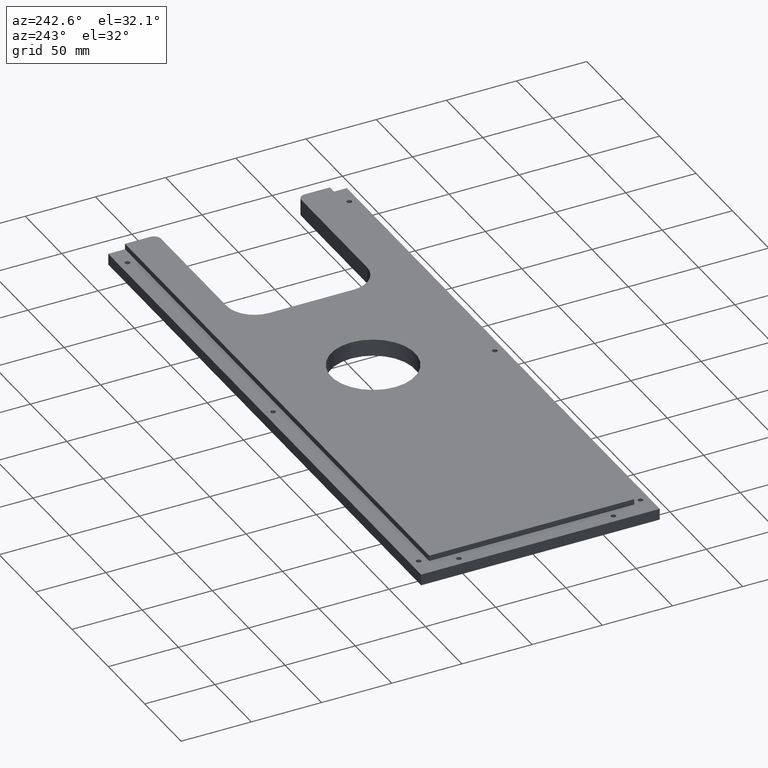
[diagram: clean part render]
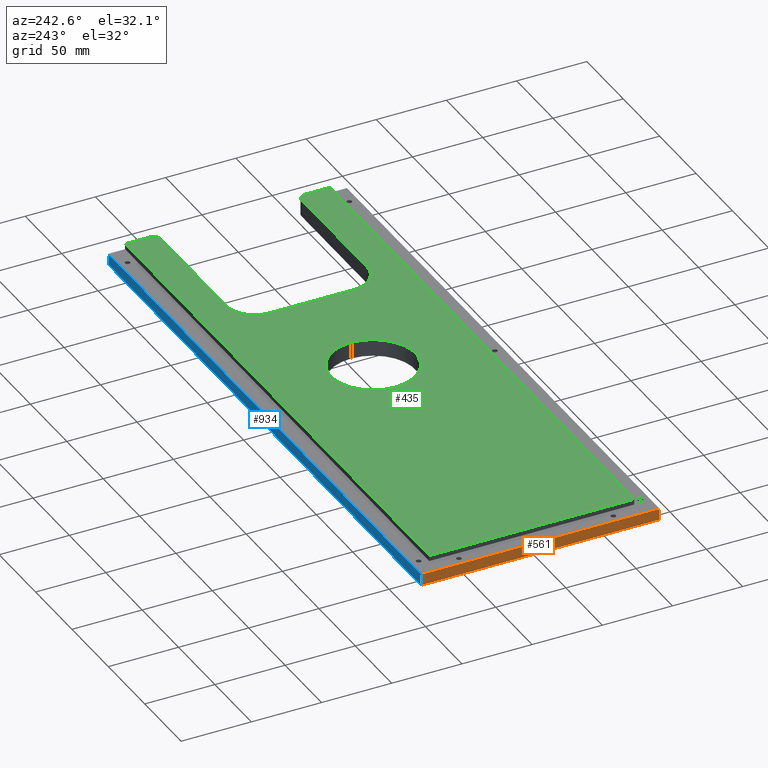
[diagram: same view with three faces highlighted in distinct colors, each labeled with its STEP entity id]
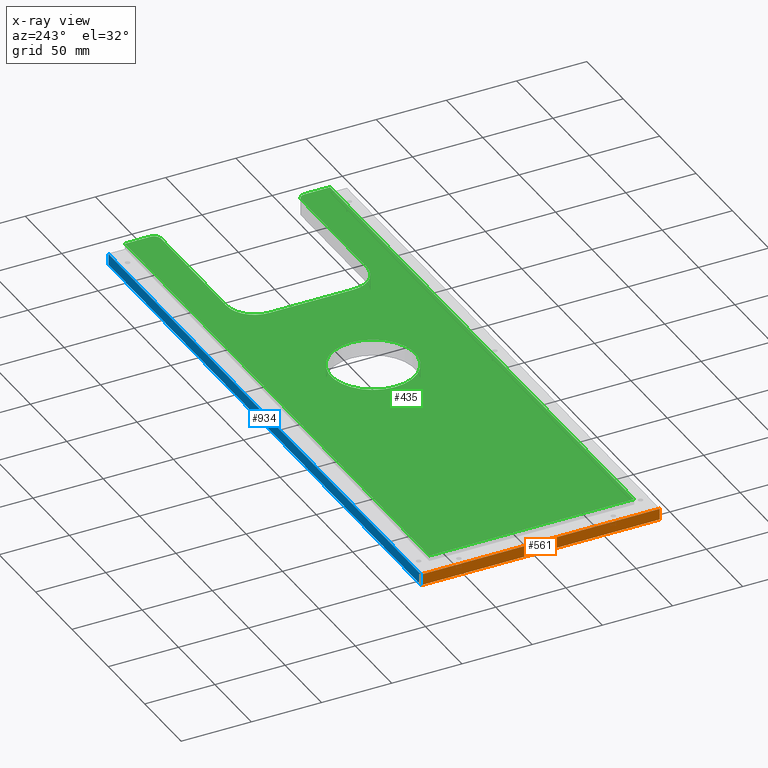
[diagram: x-ray of the same camera — body ghosted, the three highlighted faces saturated]
A machine part, auxiliary view with three faces highlighted in distinct colors.
The next image is the same camera in x-ray (body ghosted, the three faces saturated) — at least one of them is partly hidden behind the body in this view.
Their STEP definitions:

[orange] entity #561 — the highlighted planar face has unit normal (1, 0, -0).
#11 = EDGE_CURVE ( 'NONE', #146, #1220, #1095, .T. ) ;
#25 = AXIS2_PLACEMENT_3D ( 'NONE', #574, #439, #431 ) ;
#73 = VECTOR ( 'NONE', #549, 1000.000000000000000 ) ;
#76 = CARTESIAN_POINT ( 'NONE',  ( -215.0000000000000300, 85.00000000000001400, 2.000000000000000000 ) ) ;
#146 = VERTEX_POINT ( 'NONE', #917 ) ;
#218 = VECTOR ( 'NONE', #340, 1000.000000000000000 ) ;
#283 = ORIENTED_EDGE ( 'NONE', *, *, #391, .F. ) ;
#317 = VERTEX_POINT ( 'NONE', #868 ) ;
#340 = DIRECTION ( 'NONE',  ( 0.0000000000000000000, -1.000000000000000000, 0.0000000000000000000 ) ) ;
#391 = EDGE_CURVE ( 'NONE', #633, #146, #1143, .T. ) ;
#400 = CARTESIAN_POINT ( 'NONE',  ( -215.0000000000000300, 85.00000000000001400, 2.000000000000000000 ) ) ;
#431 = DIRECTION ( 'NONE',  ( -1.632680918566406500E-016, 1.000000000000000000, 0.0000000000000000000 ) ) ;
#439 = DIRECTION ( 'NONE',  ( 1.000000000000000000, 1.632680918566406500E-016, -0.0000000000000000000 ) ) ;
#480 = PLANE ( 'NONE',  #25 ) ;
#523 = ORIENTED_EDGE ( 'NONE', *, *, #11, .F. ) ;
#549 = DIRECTION ( 'NONE',  ( -0.0000000000000000000, -0.0000000000000000000, -1.000000000000000000 ) ) ;
#561 = ADVANCED_FACE ( 'NONE', ( #1025 ), #480, .F. ) ;
#574 = CARTESIAN_POINT ( 'NONE',  ( -215.0000000000000300, 85.00000000000001400, 6.000000000000000000 ) ) ;
#633 = VERTEX_POINT ( 'NONE', #76 ) ;
#651 = VECTOR ( 'NONE', #1191, 1000.000000000000000 ) ;
#668 = EDGE_CURVE ( 'NONE', #317, #1220, #881, .T. ) ;
#746 = CARTESIAN_POINT ( 'NONE',  ( -215.0000000000000000, -84.99999999999998600, -6.000000000000000000 ) ) ;
#791 = ORIENTED_EDGE ( 'NONE', *, *, #1120, .T. ) ;
#829 = ORIENTED_EDGE ( 'NONE', *, *, #668, .T. ) ;
#856 = VECTOR ( 'NONE', #913, 1000.000000000000000 ) ;
#868 = CARTESIAN_POINT ( 'NONE',  ( -215.0000000000000300, 85.00000000000001400, -6.000000000000000000 ) ) ;
#881 = LINE ( 'NONE', #1196, #651 ) ;
#913 = DIRECTION ( 'NONE',  ( -0.0000000000000000000, -0.0000000000000000000, -1.000000000000000000 ) ) ;
#917 = CARTESIAN_POINT ( 'NONE',  ( -215.0000000000000000, -84.99999999999998600, 2.000000000000000000 ) ) ;
#965 = EDGE_LOOP ( 'NONE', ( #523, #283, #791, #829 ) ) ;
#1025 = FACE_OUTER_BOUND ( 'NONE', #965, .T. ) ;
#1095 = LINE ( 'NONE', #1246, #73 ) ;
#1120 = EDGE_CURVE ( 'NONE', #633, #317, #1209, .T. ) ;
#1143 = LINE ( 'NONE', #400, #218 ) ;
#1191 = DIRECTION ( 'NONE',  ( 1.632680918566406500E-016, -1.000000000000000000, 0.0000000000000000000 ) ) ;
#1196 = CARTESIAN_POINT ( 'NONE',  ( -215.0000000000000300, 85.00000000000001400, -6.000000000000000000 ) ) ;
#1209 = LINE ( 'NONE', #1249, #856 ) ;
#1220 = VERTEX_POINT ( 'NONE', #746 ) ;
#1246 = CARTESIAN_POINT ( 'NONE',  ( -215.0000000000000000, -84.99999999999998600, 6.000000000000000000 ) ) ;
#1249 = CARTESIAN_POINT ( 'NONE',  ( -215.0000000000000300, 85.00000000000001400, 6.000000000000000000 ) ) ;

[blue] entity #934 — the highlighted planar face has unit normal (0, -1, 0).
#18 = CARTESIAN_POINT ( 'NONE',  ( 214.9999999999999700, 85.00000000000001400, -6.000000000000000000 ) ) ;
#68 = CARTESIAN_POINT ( 'NONE',  ( 214.9999999999999700, 85.00000000000001400, 6.000000000000000000 ) ) ;
#76 = CARTESIAN_POINT ( 'NONE',  ( -215.0000000000000300, 85.00000000000001400, 2.000000000000000000 ) ) ;
#167 = EDGE_CURVE ( 'NONE', #967, #317, #1024, .T. ) ;
#215 = ORIENTED_EDGE ( 'NONE', *, *, #440, .T. ) ;
#267 = EDGE_LOOP ( 'NONE', ( #612, #215, #546, #1099 ) ) ;
#270 = VECTOR ( 'NONE', #1164, 1000.000000000000000 ) ;
#317 = VERTEX_POINT ( 'NONE', #868 ) ;
#333 = LINE ( 'NONE', #68, #1111 ) ;
#381 = VECTOR ( 'NONE', #692, 1000.000000000000000 ) ;
#440 = EDGE_CURVE ( 'NONE', #552, #967, #333, .T. ) ;
#487 = DIRECTION ( 'NONE',  ( 0.0000000000000000000, -0.0000000000000000000, -1.000000000000000000 ) ) ;
#488 = DIRECTION ( 'NONE',  ( 0.0000000000000000000, -1.000000000000000000, 0.0000000000000000000 ) ) ;
#546 = ORIENTED_EDGE ( 'NONE', *, *, #167, .T. ) ;
#552 = VERTEX_POINT ( 'NONE', #599 ) ;
#591 = PLANE ( 'NONE',  #825 ) ;
#599 = CARTESIAN_POINT ( 'NONE',  ( 214.9999999999999700, 85.00000000000001400, 2.000000000000000000 ) ) ;
#612 = ORIENTED_EDGE ( 'NONE', *, *, #910, .F. ) ;
#613 = CARTESIAN_POINT ( 'NONE',  ( -215.0000000000000300, 85.00000000000001400, 6.000000000000000000 ) ) ;
#633 = VERTEX_POINT ( 'NONE', #76 ) ;
#654 = DIRECTION ( 'NONE',  ( -0.0000000000000000000, -0.0000000000000000000, -1.000000000000000000 ) ) ;
#692 = DIRECTION ( 'NONE',  ( -1.000000000000000000, -0.0000000000000000000, -0.0000000000000000000 ) ) ;
#701 = CARTESIAN_POINT ( 'NONE',  ( -215.0000000000000300, 85.00000000000001400, 2.000000000000000000 ) ) ;
#825 = AXIS2_PLACEMENT_3D ( 'NONE', #613, #488, #487 ) ;
#856 = VECTOR ( 'NONE', #913, 1000.000000000000000 ) ;
#868 = CARTESIAN_POINT ( 'NONE',  ( -215.0000000000000300, 85.00000000000001400, -6.000000000000000000 ) ) ;
#890 = FACE_OUTER_BOUND ( 'NONE', #267, .T. ) ;
#910 = EDGE_CURVE ( 'NONE', #552, #633, #1113, .T. ) ;
#913 = DIRECTION ( 'NONE',  ( -0.0000000000000000000, -0.0000000000000000000, -1.000000000000000000 ) ) ;
#934 = ADVANCED_FACE ( 'NONE', ( #890 ), #591, .F. ) ;
#951 = CARTESIAN_POINT ( 'NONE',  ( -215.0000000000000300, 85.00000000000001400, -6.000000000000000000 ) ) ;
#967 = VERTEX_POINT ( 'NONE', #18 ) ;
#1024 = LINE ( 'NONE', #951, #270 ) ;
#1099 = ORIENTED_EDGE ( 'NONE', *, *, #1120, .F. ) ;
#1111 = VECTOR ( 'NONE', #654, 1000.000000000000000 ) ;
#1113 = LINE ( 'NONE', #701, #381 ) ;
#1120 = EDGE_CURVE ( 'NONE', #633, #317, #1209, .T. ) ;
#1164 = DIRECTION ( 'NONE',  ( -1.000000000000000000, -0.0000000000000000000, -0.0000000000000000000 ) ) ;
#1209 = LINE ( 'NONE', #1249, #856 ) ;
#1249 = CARTESIAN_POINT ( 'NONE',  ( -215.0000000000000300, 85.00000000000001400, 6.000000000000000000 ) ) ;

[green] entity #435 — the highlighted planar face has unit normal (-0, 0, 1).
#1 = CARTESIAN_POINT ( 'NONE',  ( -203.0000000000000000, 73.00000000000002800, 6.000000000000000000 ) ) ;
#6 = CIRCLE ( 'NONE', #356, 19.99999999999998900 ) ;
#12 = DIRECTION ( 'NONE',  ( -1.901066822988281500E-016, 1.000000000000000000, -0.0000000000000000000 ) ) ;
#17 = CIRCLE ( 'NONE', #1272, 5.000000000000004400 ) ;
#39 = DIRECTION ( 'NONE',  ( -1.000000000000000000, -0.0000000000000000000, -0.0000000000000000000 ) ) ;
#56 = EDGE_CURVE ( 'NONE', #237, #1211, #6, .T. ) ;
#93 = VERTEX_POINT ( 'NONE', #639 ) ;
#103 = DIRECTION ( 'NONE',  ( 1.000000000000000000, 0.0000000000000000000, 0.0000000000000000000 ) ) ;
#107 = VERTEX_POINT ( 'NONE', #198 ) ;
#112 = DIRECTION ( 'NONE',  ( 0.0000000000000000000, 0.0000000000000000000, 1.000000000000000000 ) ) ;
#115 = CARTESIAN_POINT ( 'NONE',  ( 15.00000000000006900, 1.224646799147347500E-016, 6.000000000000000000 ) ) ;
#117 = EDGE_CURVE ( 'NONE', #1062, #107, #433, .T. ) ;
#132 = ORIENTED_EDGE ( 'NONE', *, *, #316, .T. ) ;
#151 = EDGE_CURVE ( 'NONE', #1211, #1052, #454, .T. ) ;
#155 = VECTOR ( 'NONE', #168, 1000.000000000000000 ) ;
#168 = DIRECTION ( 'NONE',  ( 1.000000000000000000, -1.460819769243627100E-016, -0.0000000000000000000 ) ) ;
#175 = DIRECTION ( 'NONE',  ( 0.0000000000000000000, 0.0000000000000000000, 1.000000000000000000 ) ) ;
#187 = CARTESIAN_POINT ( 'NONE',  ( -215.0000000000000300, -73.00000000000000000, 6.000000000000000000 ) ) ;
#190 = EDGE_CURVE ( 'NONE', #970, #496, #197, .T. ) ;
#192 = CARTESIAN_POINT ( 'NONE',  ( 214.9999999999999700, -50.00000000000000000, 6.000000000000000000 ) ) ;
#197 = CIRCLE ( 'NONE', #1212, 30.00000000000000000 ) ;
#198 = CARTESIAN_POINT ( 'NONE',  ( 209.9999999999999400, -50.00000000000000000, 6.000000000000000000 ) ) ;
#211 = ORIENTED_EDGE ( 'NONE', *, *, #1072, .F. ) ;
#213 = DIRECTION ( 'NONE',  ( 1.000000000000000000, 0.0000000000000000000, 0.0000000000000000000 ) ) ;
#237 = VERTEX_POINT ( 'NONE', #276 ) ;
#245 = EDGE_LOOP ( 'NONE', ( #349, #734, #652, #1122, #831, #475, #132, #1221, #540, #211, #1081, #610 ) ) ;
#251 = CIRCLE ( 'NONE', #1194, 19.99999999999998900 ) ;
#257 = LINE ( 'NONE', #1, #1065 ) ;
#273 = ORIENTED_EDGE ( 'NONE', *, *, #190, .F. ) ;
#276 = CARTESIAN_POINT ( 'NONE',  ( 119.9999999999999700, 49.99999999999998600, 6.000000000000000000 ) ) ;
#316 = EDGE_CURVE ( 'NONE', #93, #1131, #962, .T. ) ;
#343 = VERTEX_POINT ( 'NONE', #551 ) ;
#349 = ORIENTED_EDGE ( 'NONE', *, *, #775, .F. ) ;
#356 = AXIS2_PLACEMENT_3D ( 'NONE', #630, #175, #436 ) ;
#360 = DIRECTION ( 'NONE',  ( -1.000000000000000000, -1.460819769243627100E-016, 0.0000000000000000000 ) ) ;
#368 = CARTESIAN_POINT ( 'NONE',  ( 214.9999999999999700, 50.00000000000000000, 6.000000000000000000 ) ) ;
#433 = LINE ( 'NONE', #192, #155 ) ;
#434 = VECTOR ( 'NONE', #1133, 1000.000000000000000 ) ;
#435 = ADVANCED_FACE ( 'NONE', ( #565, #1086 ), #778, .T. ) ;
#436 = DIRECTION ( 'NONE',  ( 1.000000000000000000, 0.0000000000000000000, 0.0000000000000000000 ) ) ;
#454 = LINE ( 'NONE', #1003, #1224 ) ;
#458 = DIRECTION ( 'NONE',  ( -1.000000000000000000, 0.0000000000000000000, 0.0000000000000000000 ) ) ;
#465 = DIRECTION ( 'NONE',  ( 0.0000000000000000000, 0.0000000000000000000, 1.000000000000000000 ) ) ;
#468 = CARTESIAN_POINT ( 'NONE',  ( 209.9999999999999700, 55.00000000000000000, 6.000000000000000000 ) ) ;
#475 = ORIENTED_EDGE ( 'NONE', *, *, #1142, .F. ) ;
#494 = VECTOR ( 'NONE', #873, 1000.000000000000000 ) ;
#495 = EDGE_CURVE ( 'NONE', #1015, #696, #943, .T. ) ;
#496 = VERTEX_POINT ( 'NONE', #1022 ) ;
#537 = DIRECTION ( 'NONE',  ( 0.0000000000000000000, 0.0000000000000000000, 1.000000000000000000 ) ) ;
#540 = ORIENTED_EDGE ( 'NONE', *, *, #117, .F. ) ;
#551 = CARTESIAN_POINT ( 'NONE',  ( 209.9999999999999700, 50.00000000000000000, 6.000000000000000000 ) ) ;
#559 = CARTESIAN_POINT ( 'NONE',  ( 119.9999999999999700, -29.99999999999999300, 6.000000000000000000 ) ) ;
#565 = FACE_OUTER_BOUND ( 'NONE', #245, .T. ) ;
#610 = ORIENTED_EDGE ( 'NONE', *, *, #56, .F. ) ;
#611 = EDGE_CURVE ( 'NONE', #496, #970, #826, .T. ) ;
#630 = CARTESIAN_POINT ( 'NONE',  ( 119.9999999999999700, 29.99999999999999300, 6.000000000000000000 ) ) ;
#639 = CARTESIAN_POINT ( 'NONE',  ( 214.9999999999999400, -73.00000000000001400, 6.000000000000000000 ) ) ;
#652 = ORIENTED_EDGE ( 'NONE', *, *, #495, .T. ) ;
#696 = VERTEX_POINT ( 'NONE', #1140 ) ;
#711 = EDGE_LOOP ( 'NONE', ( #273, #974 ) ) ;
#734 = ORIENTED_EDGE ( 'NONE', *, *, #1264, .T. ) ;
#747 = VECTOR ( 'NONE', #360, 1000.000000000000000 ) ;
#753 = CARTESIAN_POINT ( 'NONE',  ( 99.99999999999997200, 29.99999999999999600, 6.000000000000000000 ) ) ;
#754 = EDGE_CURVE ( 'NONE', #1034, #696, #1192, .T. ) ;
#770 = VERTEX_POINT ( 'NONE', #813 ) ;
#775 = EDGE_CURVE ( 'NONE', #343, #237, #1010, .T. ) ;
#776 = CARTESIAN_POINT ( 'NONE',  ( 119.9999999999999700, -49.99999999999998600, 6.000000000000000000 ) ) ;
#778 = PLANE ( 'NONE',  #1068 ) ;
#782 = DIRECTION ( 'NONE',  ( -0.0000000000000000000, 0.0000000000000000000, 1.000000000000000000 ) ) ;
#795 = DIRECTION ( 'NONE',  ( 1.000000000000000000, 0.0000000000000000000, 0.0000000000000000000 ) ) ;
#798 = DIRECTION ( 'NONE',  ( 1.000000000000000000, 0.0000000000000000000, 0.0000000000000000000 ) ) ;
#804 = DIRECTION ( 'NONE',  ( 1.000000000000000000, 0.0000000000000000000, 0.0000000000000000000 ) ) ;
#813 = CARTESIAN_POINT ( 'NONE',  ( -203.0000000000000000, -73.00000000000001400, 6.000000000000000000 ) ) ;
#826 = CIRCLE ( 'NONE', #1044, 30.00000000000000000 ) ;
#831 = ORIENTED_EDGE ( 'NONE', *, *, #843, .F. ) ;
#843 = EDGE_CURVE ( 'NONE', #770, #1034, #257, .T. ) ;
#859 = DIRECTION ( 'NONE',  ( -0.0000000000000000000, 0.0000000000000000000, 1.000000000000000000 ) ) ;
#864 = CARTESIAN_POINT ( 'NONE',  ( 209.9999999999999400, -54.99999999999999300, 6.000000000000000000 ) ) ;
#873 = DIRECTION ( 'NONE',  ( 1.000000000000000000, 0.0000000000000000000, 0.0000000000000000000 ) ) ;
#874 = LINE ( 'NONE', #187, #918 ) ;
#918 = VECTOR ( 'NONE', #39, 1000.000000000000000 ) ;
#932 = DIRECTION ( 'NONE',  ( -0.0000000000000000000, 0.0000000000000000000, 1.000000000000000000 ) ) ;
#937 = CARTESIAN_POINT ( 'NONE',  ( 214.9999999999999700, 85.00000000000001400, 6.000000000000000000 ) ) ;
#943 = LINE ( 'NONE', #1105, #434 ) ;
#949 = CARTESIAN_POINT ( 'NONE',  ( 45.00000000000007100, 1.224646799147347500E-016, 6.000000000000000000 ) ) ;
#955 = CARTESIAN_POINT ( 'NONE',  ( 214.9999999999999700, 55.00000000000000000, 6.000000000000000000 ) ) ;
#962 = LINE ( 'NONE', #937, #1160 ) ;
#968 = CARTESIAN_POINT ( 'NONE',  ( 0.0000000000000000000, 0.0000000000000000000, 6.000000000000000000 ) ) ;
#970 = VERTEX_POINT ( 'NONE', #949 ) ;
#973 = CARTESIAN_POINT ( 'NONE',  ( -215.0000000000000300, 73.00000000000002800, 6.000000000000000000 ) ) ;
#974 = ORIENTED_EDGE ( 'NONE', *, *, #611, .F. ) ;
#998 = AXIS2_PLACEMENT_3D ( 'NONE', #468, #782, #798 ) ;
#1003 = CARTESIAN_POINT ( 'NONE',  ( 99.99999999999997200, 29.99999999999999600, 6.000000000000000000 ) ) ;
#1004 = CARTESIAN_POINT ( 'NONE',  ( 214.9999999999999400, -54.99999999999999300, 6.000000000000000000 ) ) ;
#1010 = LINE ( 'NONE', #368, #747 ) ;
#1015 = VERTEX_POINT ( 'NONE', #955 ) ;
#1019 = CIRCLE ( 'NONE', #998, 5.000000000000004400 ) ;
#1022 = CARTESIAN_POINT ( 'NONE',  ( -14.99999999999993100, 3.796405077356794300E-015, 6.000000000000000000 ) ) ;
#1034 = VERTEX_POINT ( 'NONE', #1260 ) ;
#1035 = CARTESIAN_POINT ( 'NONE',  ( 15.00000000000006900, 1.224646799147347500E-016, 6.000000000000000000 ) ) ;
#1039 = EDGE_CURVE ( 'NONE', #1131, #107, #17, .T. ) ;
#1044 = AXIS2_PLACEMENT_3D ( 'NONE', #115, #112, #103 ) ;
#1052 = VERTEX_POINT ( 'NONE', #1180 ) ;
#1062 = VERTEX_POINT ( 'NONE', #776 ) ;
#1065 = VECTOR ( 'NONE', #12, 1000.000000000000000 ) ;
#1068 = AXIS2_PLACEMENT_3D ( 'NONE', #968, #932, #804 ) ;
#1072 = EDGE_CURVE ( 'NONE', #1052, #1062, #251, .T. ) ;
#1081 = ORIENTED_EDGE ( 'NONE', *, *, #151, .F. ) ;
#1086 = FACE_BOUND ( 'NONE', #711, .T. ) ;
#1105 = CARTESIAN_POINT ( 'NONE',  ( 214.9999999999999700, 85.00000000000001400, 6.000000000000000000 ) ) ;
#1122 = ORIENTED_EDGE ( 'NONE', *, *, #754, .F. ) ;
#1131 = VERTEX_POINT ( 'NONE', #1004 ) ;
#1133 = DIRECTION ( 'NONE',  ( 1.632680918566406500E-016, 1.000000000000000000, -0.0000000000000000000 ) ) ;
#1140 = CARTESIAN_POINT ( 'NONE',  ( 214.9999999999999700, 73.00000000000002800, 6.000000000000000000 ) ) ;
#1142 = EDGE_CURVE ( 'NONE', #93, #770, #874, .T. ) ;
#1160 = VECTOR ( 'NONE', #1228, 1000.000000000000000 ) ;
#1180 = CARTESIAN_POINT ( 'NONE',  ( 99.99999999999997200, -29.99999999999999600, 6.000000000000000000 ) ) ;
#1192 = LINE ( 'NONE', #973, #494 ) ;
#1194 = AXIS2_PLACEMENT_3D ( 'NONE', #559, #465, #458 ) ;
#1211 = VERTEX_POINT ( 'NONE', #753 ) ;
#1212 = AXIS2_PLACEMENT_3D ( 'NONE', #1035, #537, #213 ) ;
#1221 = ORIENTED_EDGE ( 'NONE', *, *, #1039, .T. ) ;
#1224 = VECTOR ( 'NONE', #1269, 1000.000000000000000 ) ;
#1228 = DIRECTION ( 'NONE',  ( 1.632680918566406500E-016, 1.000000000000000000, -0.0000000000000000000 ) ) ;
#1260 = CARTESIAN_POINT ( 'NONE',  ( -203.0000000000000000, 73.00000000000002800, 6.000000000000000000 ) ) ;
#1264 = EDGE_CURVE ( 'NONE', #343, #1015, #1019, .T. ) ;
#1269 = DIRECTION ( 'NONE',  ( 0.0000000000000000000, -1.000000000000000000, 0.0000000000000000000 ) ) ;
#1272 = AXIS2_PLACEMENT_3D ( 'NONE', #864, #859, #795 ) ;